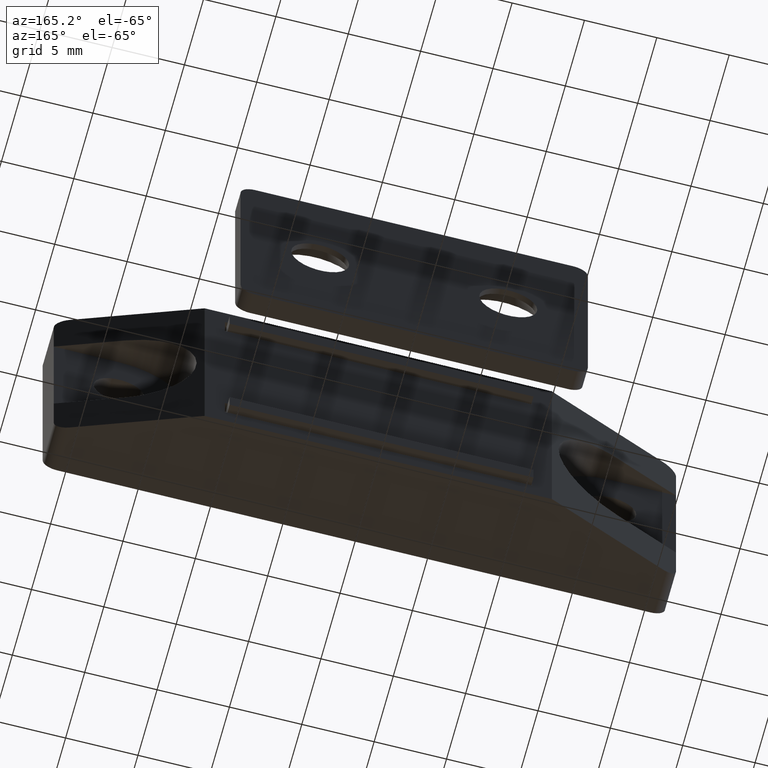
[diagram: clean part render]
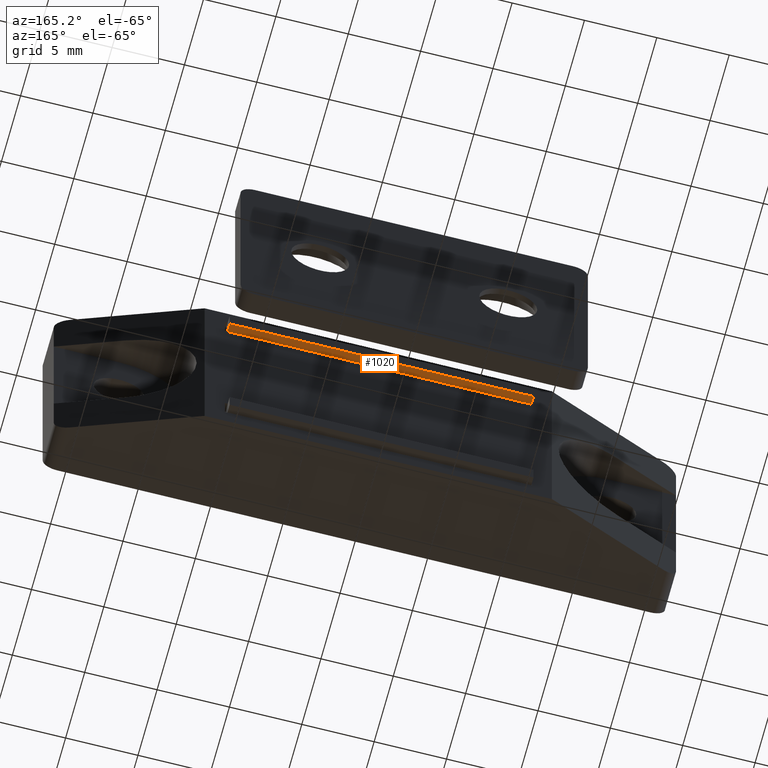
[diagram: same view with one face highlighted and labeled with its STEP entity id]
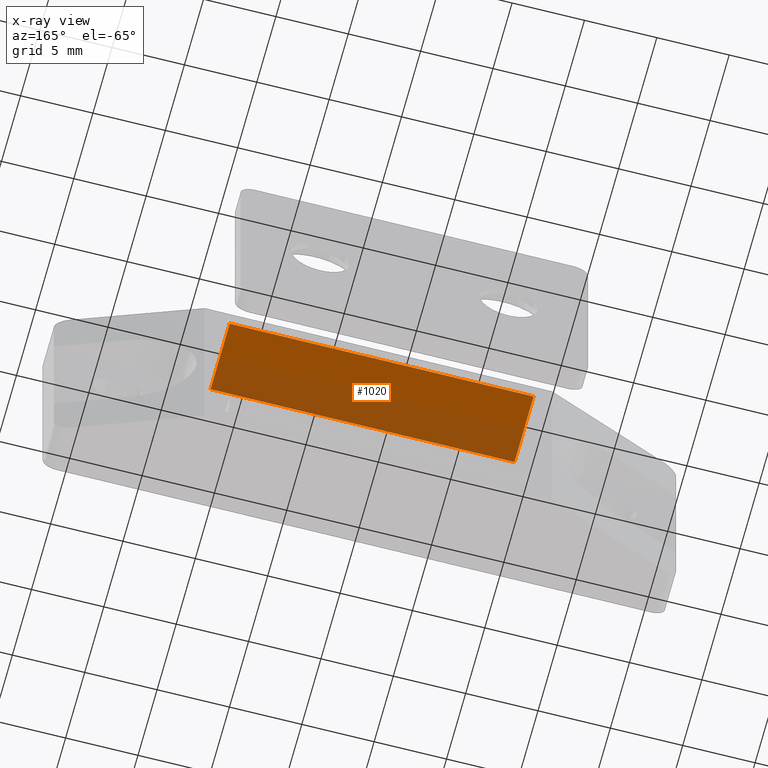
[diagram: x-ray of the same camera — body ghosted, the highlighted face saturated]
A machine part, auxiliary view. The second image highlights one B-rep face of the part: STEP entity #1020.
The next image is the same camera in x-ray: the body ghosted, the highlighted face saturated — about 49% of this face is hidden behind the body in this view.
In plain terms, the highlighted planar face has unit normal (-0, 0, -1).
Its self-contained STEP definition (entity closure, byte-faithful):
#96=PLANE('',#1115);
#154=FACE_OUTER_BOUND('',#228,.T.);
#228=EDGE_LOOP('',(#936,#937,#938,#939));
#334=LINE('',#1686,#436);
#335=LINE('',#1689,#437);
#336=LINE('',#1691,#438);
#337=LINE('',#1692,#439);
#436=VECTOR('',#1393,5.);
#437=VECTOR('',#1396,21.);
#438=VECTOR('',#1397,21.);
#439=VECTOR('',#1398,5.);
#552=VERTEX_POINT('',#1682);
#553=VERTEX_POINT('',#1684);
#554=VERTEX_POINT('',#1688);
#555=VERTEX_POINT('',#1690);
#682=EDGE_CURVE('',#552,#553,#334,.T.);
#683=EDGE_CURVE('',#552,#554,#335,.T.);
#684=EDGE_CURVE('',#555,#553,#336,.T.);
#685=EDGE_CURVE('',#554,#555,#337,.T.);
#936=ORIENTED_EDGE('',*,*,#683,.F.);
#937=ORIENTED_EDGE('',*,*,#682,.T.);
#938=ORIENTED_EDGE('',*,*,#684,.F.);
#939=ORIENTED_EDGE('',*,*,#685,.F.);
#1020=ADVANCED_FACE('',(#154),#96,.T.);
#1115=AXIS2_PLACEMENT_3D('',#1687,#1394,#1395);
#1393=DIRECTION('',(0.,0.,-1.));
#1394=DIRECTION('center_axis',(0.,-1.,0.));
#1395=DIRECTION('ref_axis',(-1.,0.,0.));
#1396=DIRECTION('',(1.,0.,0.));
#1397=DIRECTION('',(-1.,0.,0.));
#1398=DIRECTION('',(0.,0.,-1.));
#1682=CARTESIAN_POINT('',(-10.5,5.8,0.6));
#1684=CARTESIAN_POINT('',(-10.5,5.8,-4.4));
#1686=CARTESIAN_POINT('',(-10.5,5.8,0.6));
#1687=CARTESIAN_POINT('Origin',(10.5,5.8,0.6));
#1688=CARTESIAN_POINT('',(10.5,5.8,0.6));
#1689=CARTESIAN_POINT('',(-10.5,5.8,0.6));
#1690=CARTESIAN_POINT('',(10.5,5.8,-4.4));
#1691=CARTESIAN_POINT('',(-10.5,5.8,-4.4));
#1692=CARTESIAN_POINT('',(10.5,5.8,0.6));